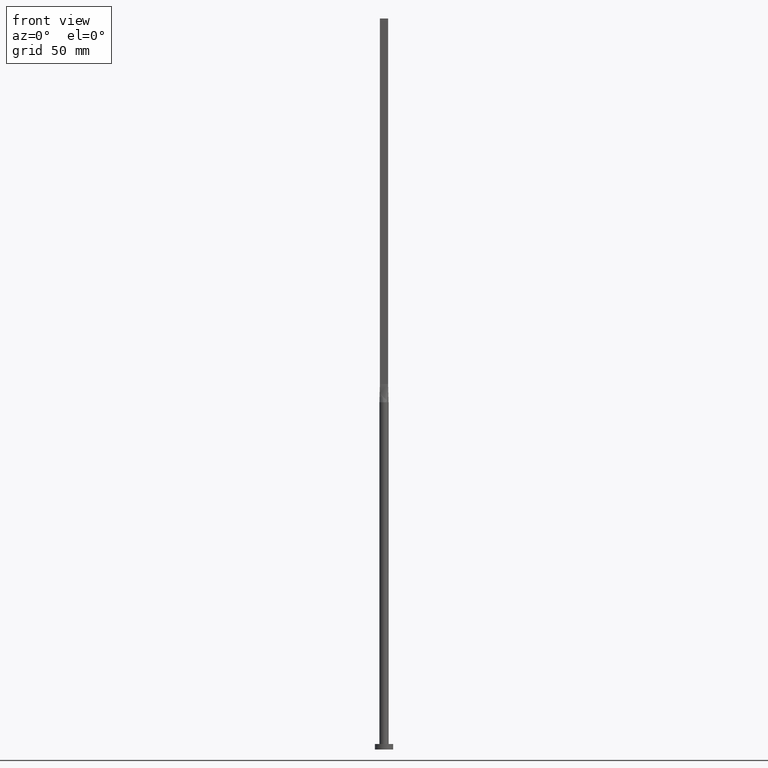
[diagram: clean part render]
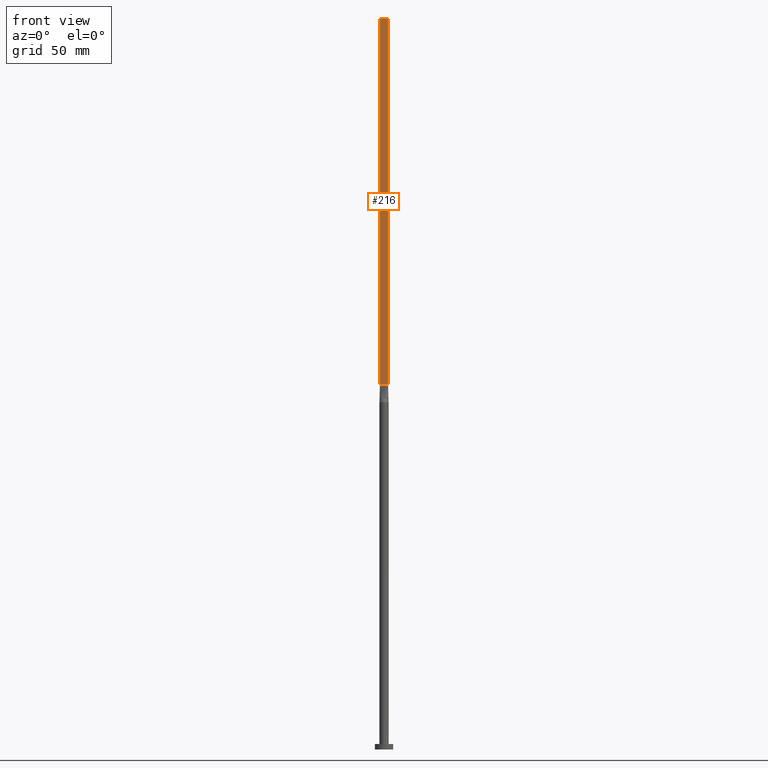
[diagram: same view with one face highlighted and labeled with its STEP entity id]
A machine part, front view. The second image highlights one B-rep face of the part: STEP entity #216.
In plain terms, the highlighted planar face has unit normal (0, 1, -0).
Its self-contained STEP definition (entity closure, byte-faithful):
#10 = EDGE_CURVE ( 'NONE', #188, #37, #457, .T. ) ;
#37 = VERTEX_POINT ( 'NONE', #342 ) ;
#38 = DIRECTION ( 'NONE',  ( 7.228014483236697048E-17, 1.000000000000000000, -0.000000000000000000 ) ) ;
#49 = ORIENTED_EDGE ( 'NONE', *, *, #10, .F. ) ;
#78 = FACE_OUTER_BOUND ( 'NONE', #393, .T. ) ;
#79 = VECTOR ( 'NONE', #214, 1000.000000000000000 ) ;
#87 = CARTESIAN_POINT ( 'NONE',  ( -2.250000000000000000, -0.4999999999999994449, 400.0000000000000000 ) ) ;
#98 = AXIS2_PLACEMENT_3D ( 'NONE', #399, #38, #177 ) ;
#140 = EDGE_CURVE ( 'NONE', #229, #188, #172, .T. ) ;
#144 = ORIENTED_EDGE ( 'NONE', *, *, #339, .T. ) ;
#163 = VECTOR ( 'NONE', #373, 1000.000000000000000 ) ;
#172 = LINE ( 'NONE', #437, #79 ) ;
#177 = DIRECTION ( 'NONE',  ( -1.000000000000000000, 7.228014483236697048E-17, 0.000000000000000000 ) ) ;
#183 = VECTOR ( 'NONE', #502, 1000.000000000000000 ) ;
#188 = VERTEX_POINT ( 'NONE', #483 ) ;
#214 = DIRECTION ( 'NONE',  ( 1.000000000000000000, -7.228014483236697048E-17, 0.000000000000000000 ) ) ;
#216 = ADVANCED_FACE ( 'NONE', ( #78 ), #305, .F. ) ;
#229 = VERTEX_POINT ( 'NONE', #87 ) ;
#268 = VERTEX_POINT ( 'NONE', #569 ) ;
#305 = PLANE ( 'NONE',  #98 ) ;
#322 = CARTESIAN_POINT ( 'NONE',  ( -2.250000000000000000, -0.4999999999999994449, 200.0000000000000000 ) ) ;
#330 = VECTOR ( 'NONE', #469, 1000.000000000000000 ) ;
#339 = EDGE_CURVE ( 'NONE', #268, #37, #543, .T. ) ;
#342 = CARTESIAN_POINT ( 'NONE',  ( 2.250000000000000000, -0.4999999999999997780, 200.0000000000000000 ) ) ;
#373 = DIRECTION ( 'NONE',  ( -0.000000000000000000, -0.000000000000000000, -1.000000000000000000 ) ) ;
#393 = EDGE_LOOP ( 'NONE', ( #144, #49, #452, #501 ) ) ;
#399 = CARTESIAN_POINT ( 'NONE',  ( -2.250000000000000000, -0.4999999999999994449, 400.0000000000000000 ) ) ;
#416 = CARTESIAN_POINT ( 'NONE',  ( 2.250000000000000000, -0.4999999999999997780, 400.0000000000000000 ) ) ;
#427 = CARTESIAN_POINT ( 'NONE',  ( -2.250000000000000000, -0.4999999999999994449, 400.0000000000000000 ) ) ;
#437 = CARTESIAN_POINT ( 'NONE',  ( -2.250000000000000000, -0.4999999999999994449, 400.0000000000000000 ) ) ;
#452 = ORIENTED_EDGE ( 'NONE', *, *, #140, .F. ) ;
#457 = LINE ( 'NONE', #416, #163 ) ;
#469 = DIRECTION ( 'NONE',  ( -0.000000000000000000, -0.000000000000000000, -1.000000000000000000 ) ) ;
#470 = EDGE_CURVE ( 'NONE', #229, #268, #514, .T. ) ;
#483 = CARTESIAN_POINT ( 'NONE',  ( 2.250000000000000000, -0.4999999999999997780, 400.0000000000000000 ) ) ;
#501 = ORIENTED_EDGE ( 'NONE', *, *, #470, .T. ) ;
#502 = DIRECTION ( 'NONE',  ( 1.000000000000000000, -7.228014483236697048E-17, 0.000000000000000000 ) ) ;
#514 = LINE ( 'NONE', #427, #330 ) ;
#543 = LINE ( 'NONE', #322, #183 ) ;
#569 = CARTESIAN_POINT ( 'NONE',  ( -2.250000000000000000, -0.4999999999999994449, 200.0000000000000000 ) ) ;